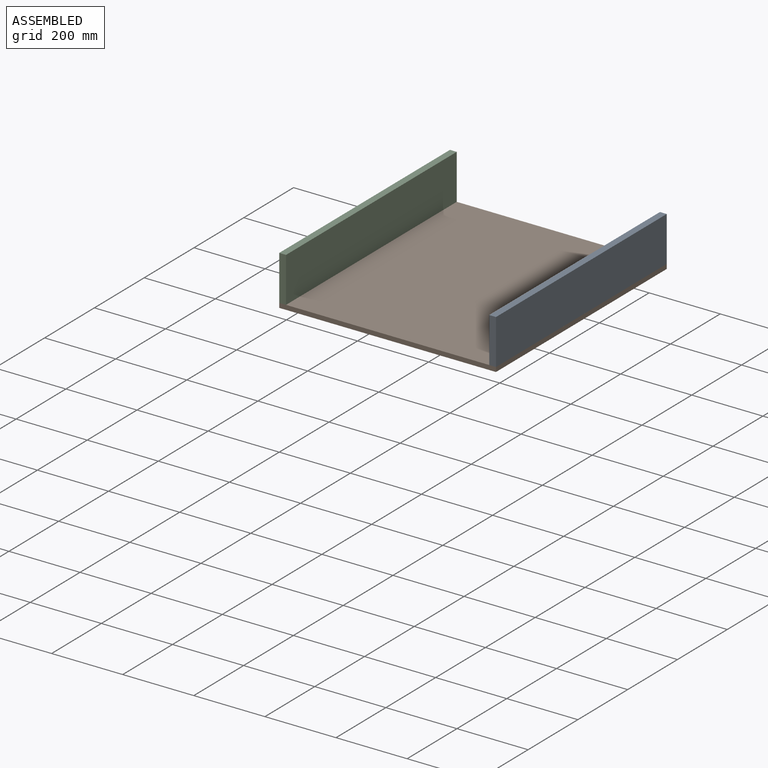
[diagram: assembled view]
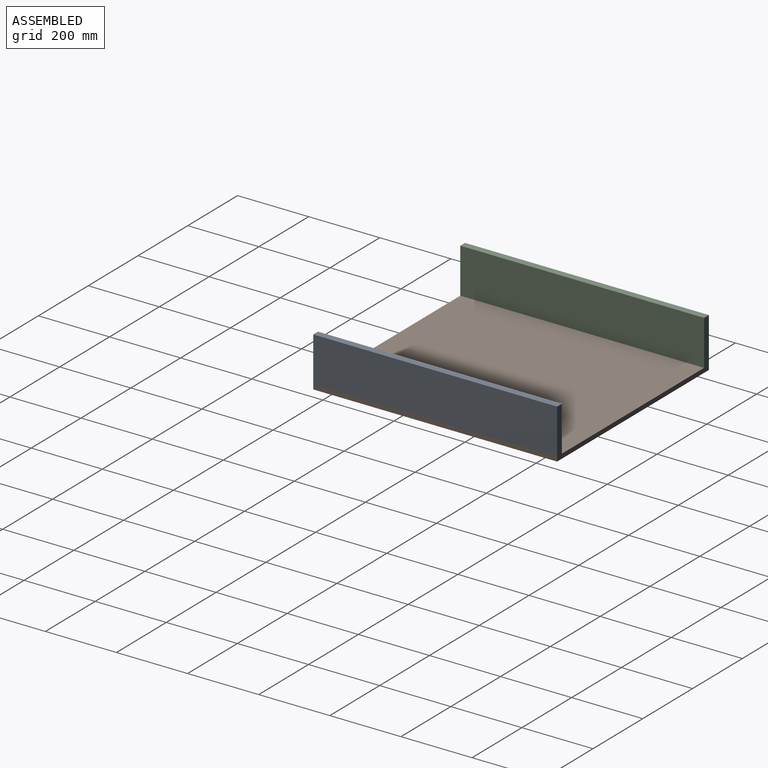
[diagram: assembled view, second angle]
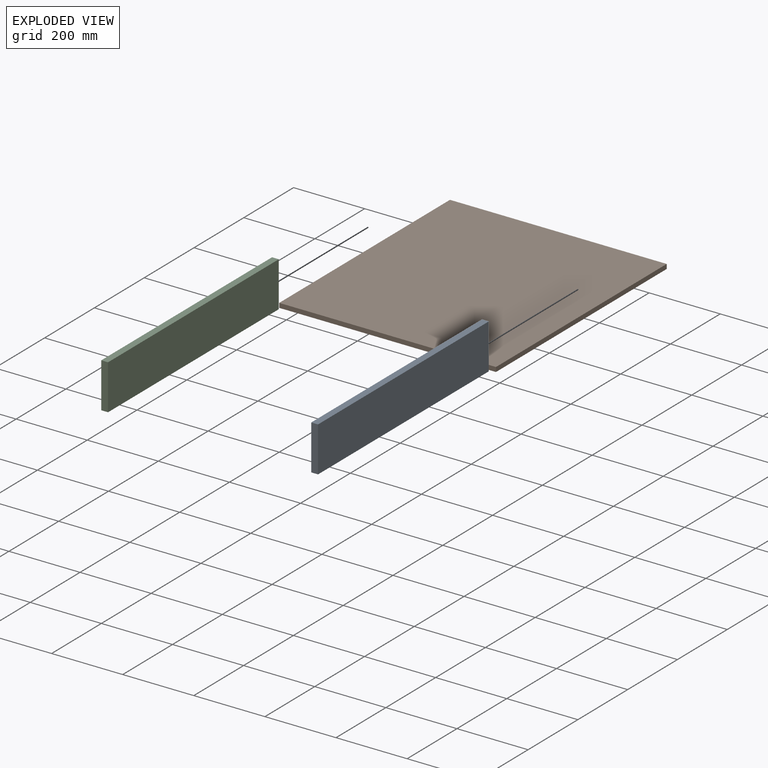
[diagram: exploded view]
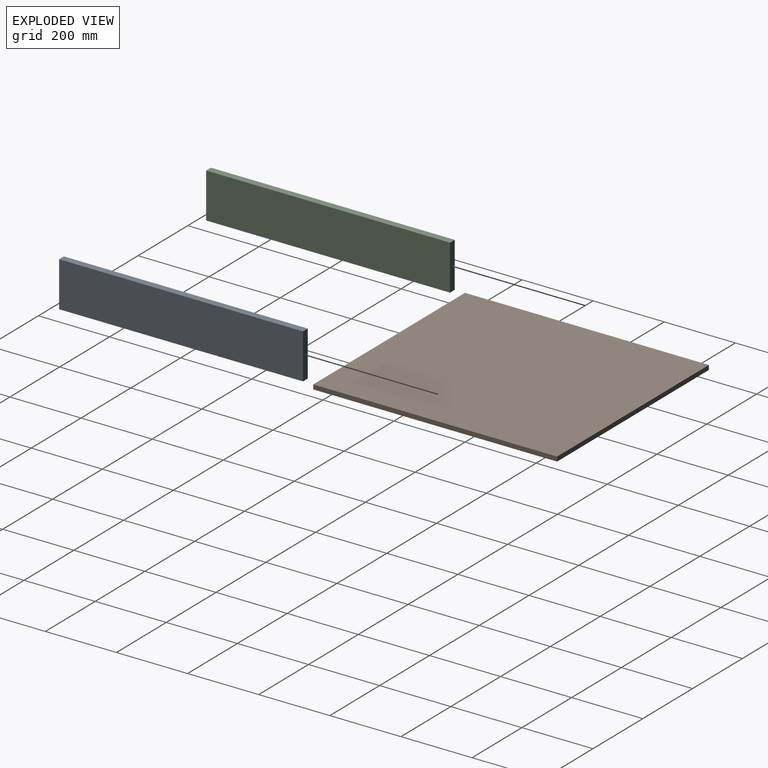
[diagram: exploded view, second angle]
ASSEMBLY  parts=3 mates=2
PART A: 6 faces, bbox 19.1x685.8x127 mm
  f0: plane 685.8x19.05mm, normal (0,0,-1), area 13064.5mm2, adj f1,f3,f4,f5
  f1: plane 685.8x127mm, normal (1,0,0), area 87096.6mm2, adj f0,f2,f4,f5
  f2: plane 685.8x19.05mm, normal (0,0,1), area 13064.5mm2, adj f1,f3,f4,f5
  f3: plane 685.8x127mm, normal (-1,0,0), area 87096.6mm2, adj f0,f2,f4,f5
  f4: plane 127x19.05mm, normal (0,1,0), area 2419.4mm2, adj f0,f1,f2,f3
  f5: plane 127x19.05mm, normal (0,-1,0), area 2419.4mm2, adj f0,f1,f2,f3
PART B: 6 faces, bbox 609.6x685.8x12.7 mm
  f0: plane 685.8x12.7mm, normal (-1,0,0), area 8709.7mm2, adj f1,f3,f4,f5
  f1: plane 609.6x12.7mm, normal (0,-1,0), area 7741.9mm2, adj f0,f2,f4,f5
  f2: plane 685.8x12.7mm, normal (1,0,0), area 8709.7mm2, adj f1,f3,f4,f5
  f3: plane 609.6x12.7mm, normal (0,1,0), area 7741.9mm2, adj f0,f2,f4,f5
  f4: plane 685.8x609.6mm, normal (0,0,1), area 418063.7mm2, adj f0,f1,f2,f3
  f5: plane 685.8x609.6mm, normal (0,0,-1), area 418063.7mm2, adj f0,f1,f2,f3
PART C: 6 faces, bbox 19.1x685.8x127 mm
  f0: plane 685.8x127mm, normal (-1,0,0), area 87096.6mm2, adj f1,f3,f4,f5
  f1: plane 685.8x19.05mm, normal (0,0,-1), area 13064.5mm2, adj f0,f2,f4,f5
  f2: plane 685.8x127mm, normal (1,0,0), area 87096.6mm2, adj f1,f3,f4,f5
  f3: plane 685.8x19.05mm, normal (0,0,1), area 13064.5mm2, adj f0,f2,f4,f5
  f4: plane 127x19.05mm, normal (0,1,0), area 2419.4mm2, adj f0,f1,f2,f3
  f5: plane 127x19.05mm, normal (0,-1,0), area 2419.4mm2, adj f0,f1,f2,f3
PLACE A at identity
PLACE B at identity fixed
PLACE C at identity
MATE fastened B.f1 <-> C.f5  axis (0,-1,0) through (0,0,12.7)mm
MATE fastened B.f1 <-> A.f5  axis (0,-1,0) through (609.6,0,12.7)mm
